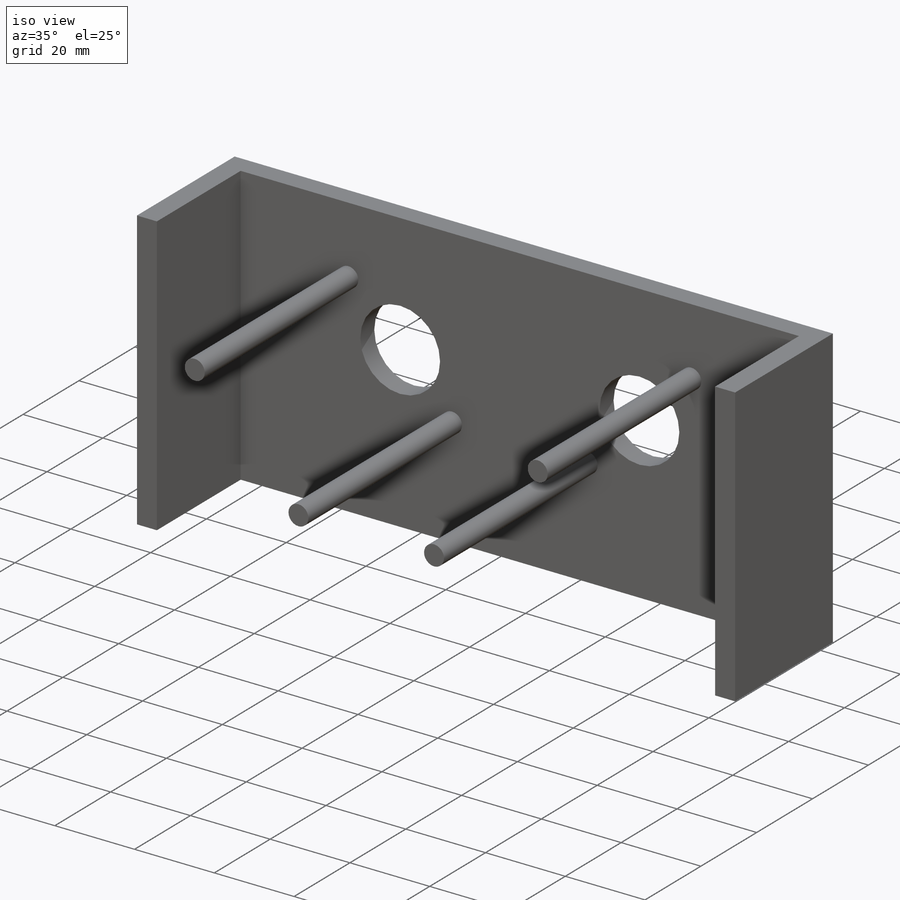
[diagram: iso view]
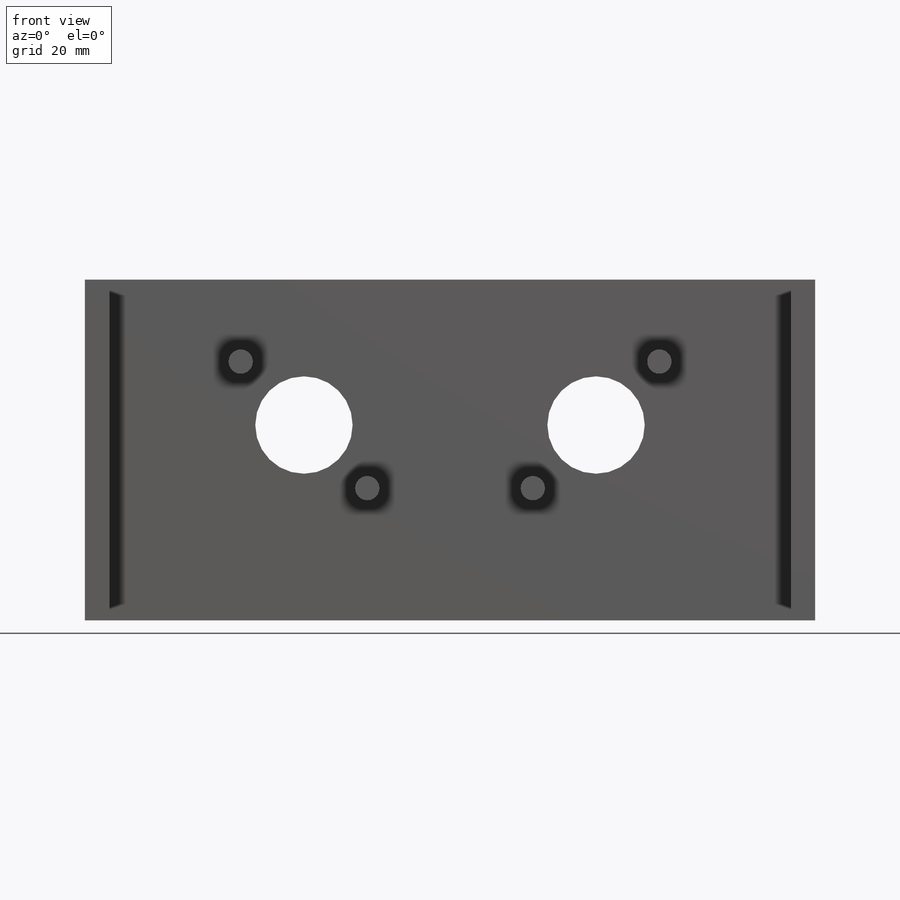
[diagram: front view]
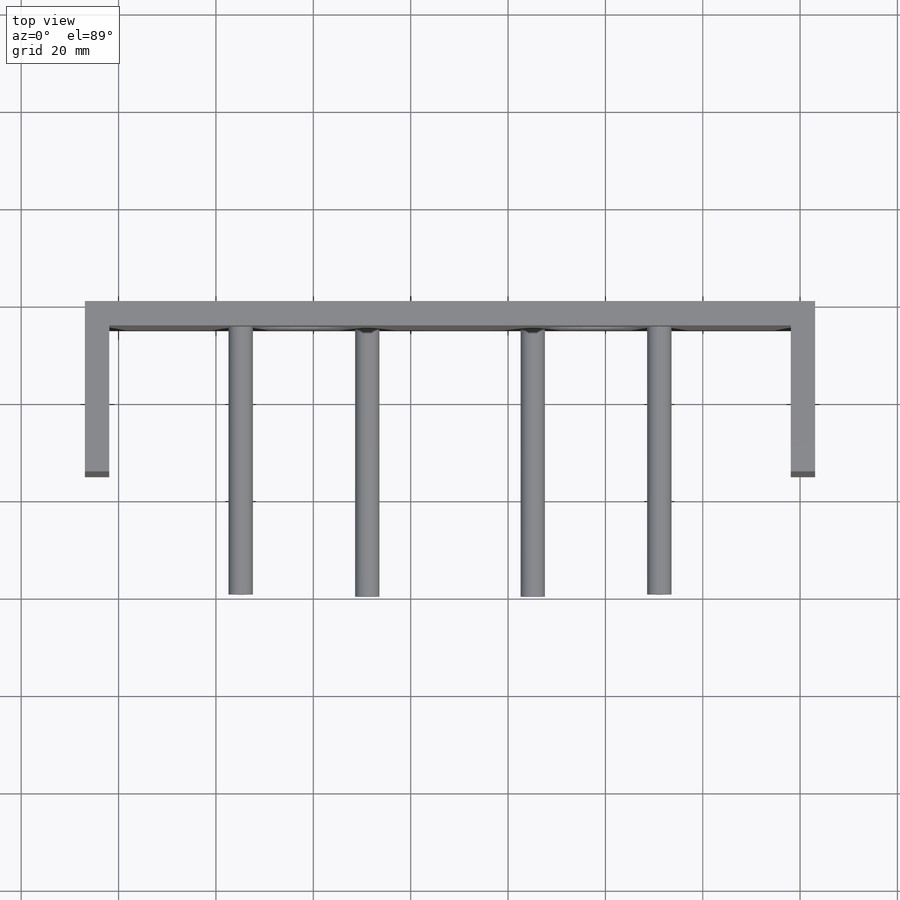
[diagram: top view]
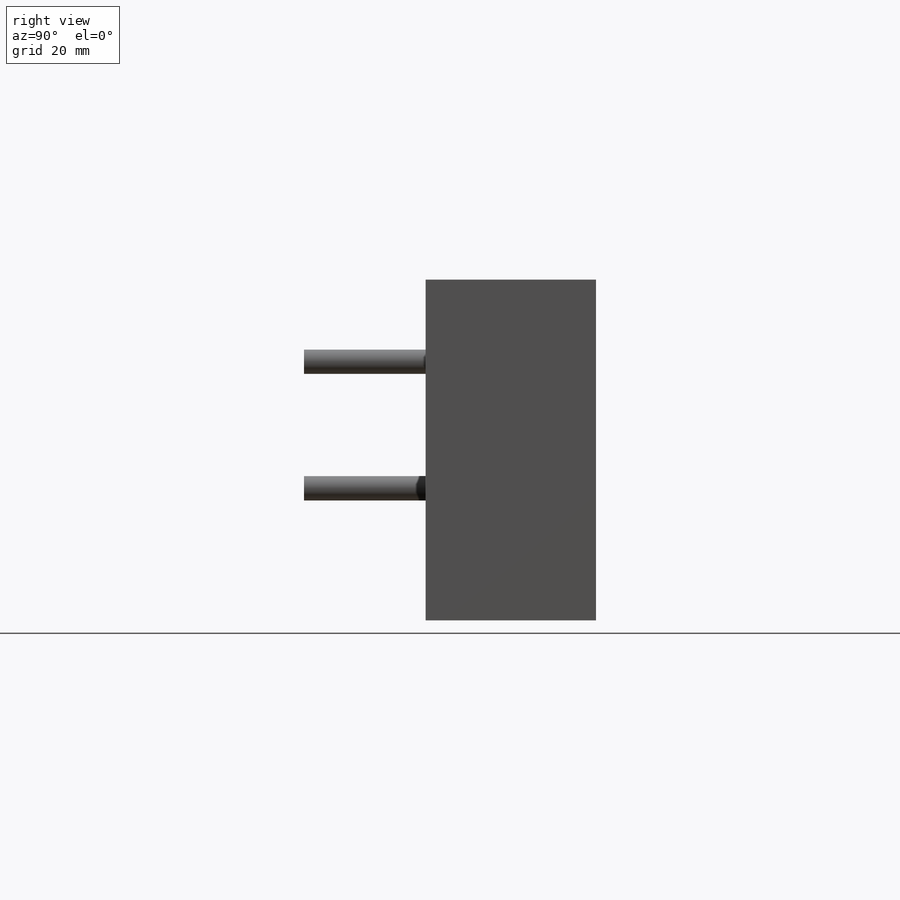
[diagram: right view]
SOLIDWORKS PART (.sldprt)
format: sldprt  version: not decoded by parser v0  size: 210,944 bytes
history: native  units: mm
features: sketch x4, plane x3, extrude x3, material x1, cut_extrude x1 (+9 scaffold rows collapsed)
feature tree (21):
  scaffold x9  (default folders/planes/origin — collapsed)
  material  "Matériau <non spécifié>"
  plane  "Plan de face"
  plane  "Plan de dessus"
  plane  "Plan de droite"
  sketch  "Esquisse1"  dims[D1=70.0mm D2=150.0mm]
  extrude  "Boss.-Extru.1"  Depth=5mm
  sketch  "Esquisse2"  dims[D1=5.0mm D2=5.0mm]
  extrude  "Boss.-Extru.2"  Depth=30mm
  sketch  "Esquisse3"  dims[c1.D3=20.0mm c1.D4=20.0mm c1.D1=45.0mm c1.D2=~57.02131mm c2.D2=90.0deg c3.D2=40.13mm c3.D5=60.0mm]
  cut_extrude  "Enlèv. mat.-Extru.1"  Depth=30mm
  sketch  "Esquisse5"  dims[c1.D9=5.0mm c1.D10=5.0mm c1.D11=5.0mm c1.D12=5.0mm c1.D1=40.0mm c1.D2=40.0mm c1.D3=40.0mm c1.D4=40.0mm c1.D5=20.0mm c1.D6=20.0mm c1.D7=20.0mm c1.D8=40.0mm c2.D8=90.0deg c3.D8=20.0mm c3.D13=7.0mm c3.D14=~8.276268mm c4.D14=90.0deg c5.D14=7.0mm c5.D15=7.0mm c5.D16=~10.83178mm c6.D16=90.0deg c7.D16=7.0mm c7.D17=7.0mm c7.D18=7.0mm c7.D19=7.0mm c7.D20=7.0mm]
  extrude  "Boss.-Extru.3"  Depth=60mm
decode coverage: 8 of 8 modeling features carry decoded parameters
note: ~ marks probable driven/reference dimensions
note: suppression state not decoded; provenance and decode notes live in map.json
